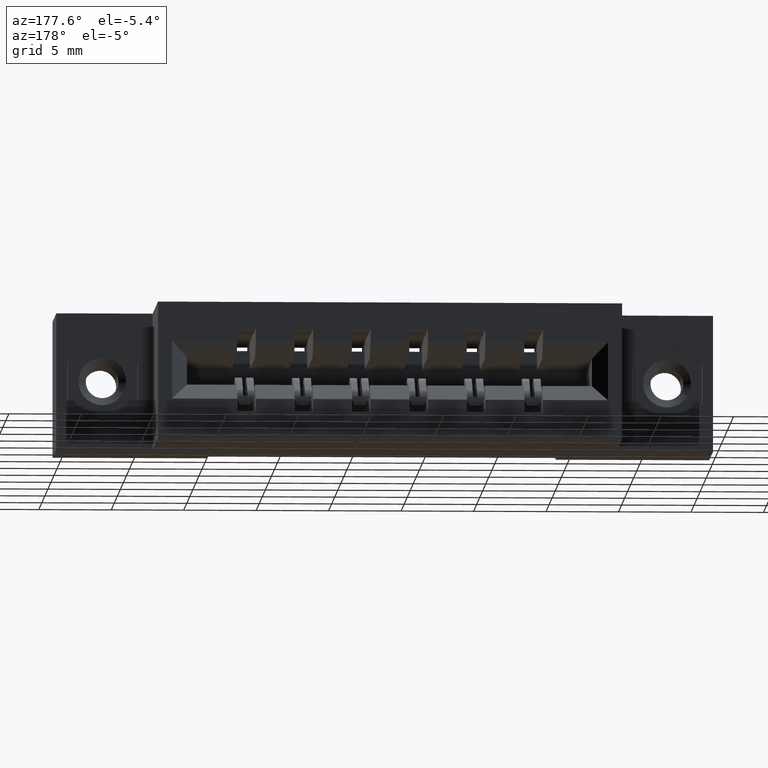
[diagram: clean part render]
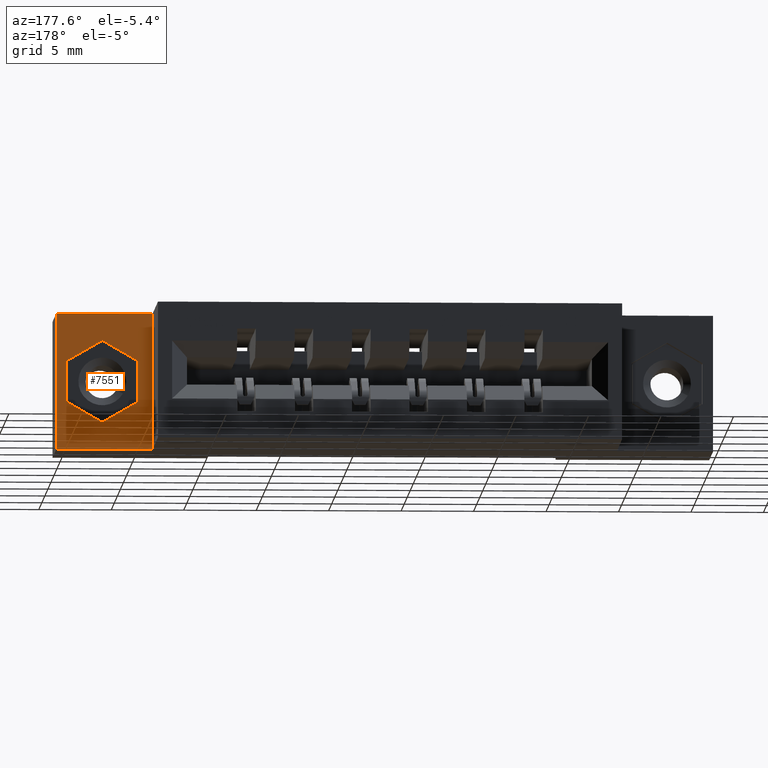
[diagram: same view with one face highlighted and labeled with its STEP entity id]
A machine part, auxiliary view. The second image highlights one B-rep face of the part: STEP entity #7551.
In plain terms, the highlighted planar face has unit normal (0, 1, 0).
Its self-contained STEP definition (entity closure, byte-faithful):
#256 = DIRECTION ( 'NONE',  ( -1.000000000000000000, 0.0000000000000000000, -5.223418725935506000E-016 ) ) ;
#823 = EDGE_LOOP ( 'NONE', ( #6696, #1185, #5176, #6648 ) ) ;
#885 = EDGE_CURVE ( 'NONE', #4120, #1144, #8137, .T. ) ;
#946 = CARTESIAN_POINT ( 'NONE',  ( 1.562500000000001100, 0.2500000000000000000, -0.1292856990231999700 ) ) ;
#1089 = ORIENTED_EDGE ( 'NONE', *, *, #1880, .F. ) ;
#1133 = VERTEX_POINT ( 'NONE', #6321 ) ;
#1144 = VERTEX_POINT ( 'NONE', #3587 ) ;
#1174 = ORIENTED_EDGE ( 'NONE', *, *, #885, .F. ) ;
#1185 = ORIENTED_EDGE ( 'NONE', *, *, #8795, .T. ) ;
#1453 = VERTEX_POINT ( 'NONE', #9634 ) ;
#1656 = ORIENTED_EDGE ( 'NONE', *, *, #6246, .F. ) ;
#1880 = EDGE_CURVE ( 'NONE', #6206, #6700, #7198, .T. ) ;
#2017 = VECTOR ( 'NONE', #5835, 39.37007874015748100 ) ;
#2099 = CARTESIAN_POINT ( 'NONE',  ( 1.755500000000001600, 0.2500000000000000000, -0.2407143009767978300 ) ) ;
#2196 = AXIS2_PLACEMENT_3D ( 'NONE', #8405, #7726, #3244 ) ;
#2233 = VECTOR ( 'NONE', #7184, 39.37007874015748100 ) ;
#2426 = CARTESIAN_POINT ( 'NONE',  ( 1.755500000000001600, 0.2500000000000000000, -0.2407143009767978300 ) ) ;
#2439 = VECTOR ( 'NONE', #4291, 39.37007874015749600 ) ;
#2693 = ORIENTED_EDGE ( 'NONE', *, *, #5034, .F. ) ;
#2768 = EDGE_CURVE ( 'NONE', #6700, #4120, #3455, .T. ) ;
#2897 = DIRECTION ( 'NONE',  ( -0.0000000000000000000, -0.0000000000000000000, -1.000000000000000000 ) ) ;
#2914 = CARTESIAN_POINT ( 'NONE',  ( 1.784000000000000500, 0.2500000000000000000, -0.3700000000000000000 ) ) ;
#3090 = VERTEX_POINT ( 'NONE', #4506 ) ;
#3244 = DIRECTION ( 'NONE',  ( 0.0000000000000000000, 0.0000000000000000000, 1.000000000000000000 ) ) ;
#3263 = CARTESIAN_POINT ( 'NONE',  ( 1.562500000000001100, 0.2500000000000000000, -0.2407143009767977500 ) ) ;
#3381 = EDGE_CURVE ( 'NONE', #3090, #4455, #6254, .T. ) ;
#3455 = LINE ( 'NONE', #7068, #3696 ) ;
#3587 = CARTESIAN_POINT ( 'NONE',  ( 1.659000000000001100, 0.2500000000000000000, -0.07357139804640112900 ) ) ;
#3602 = LINE ( 'NONE', #5509, #7088 ) ;
#3646 = EDGE_CURVE ( 'NONE', #4455, #1133, #5795, .T. ) ;
#3696 = VECTOR ( 'NONE', #7473, 39.37007874015748100 ) ;
#3808 = VECTOR ( 'NONE', #2897, 39.37007874015748100 ) ;
#4051 = DIRECTION ( 'NONE',  ( 0.0000000000000000000, 0.0000000000000000000, 1.000000000000000000 ) ) ;
#4120 = VERTEX_POINT ( 'NONE', #946 ) ;
#4208 = CARTESIAN_POINT ( 'NONE',  ( 1.659000000000001600, 0.2500000000000000000, -0.2964286019535967200 ) ) ;
#4291 = DIRECTION ( 'NONE',  ( 0.8660254037844384900, -0.0000000000000000000, 0.5000000000000002200 ) ) ;
#4455 = VERTEX_POINT ( 'NONE', #5823 ) ;
#4456 = VECTOR ( 'NONE', #8367, 39.37007874015748100 ) ;
#4475 = VECTOR ( 'NONE', #7945, 39.37007874015749600 ) ;
#4506 = CARTESIAN_POINT ( 'NONE',  ( 1.522500000000001100, 0.2500000000000000000, -1.704402182713329600E-016 ) ) ;
#4696 = LINE ( 'NONE', #2426, #4456 ) ;
#4779 = FACE_BOUND ( 'NONE', #5522, .T. ) ;
#5034 = EDGE_CURVE ( 'NONE', #7228, #6206, #6453, .T. ) ;
#5176 = ORIENTED_EDGE ( 'NONE', *, *, #3381, .T. ) ;
#5242 = LINE ( 'NONE', #9210, #7191 ) ;
#5246 = VECTOR ( 'NONE', #7022, 39.37007874015748900 ) ;
#5325 = ORIENTED_EDGE ( 'NONE', *, *, #2768, .F. ) ;
#5509 = CARTESIAN_POINT ( 'NONE',  ( 1.784000000000000500, 0.2500000000000000000, -0.3700000000000000000 ) ) ;
#5522 = EDGE_LOOP ( 'NONE', ( #5325, #1089, #2693, #8482, #1656, #1174 ) ) ;
#5526 = LINE ( 'NONE', #9394, #2233 ) ;
#5795 = LINE ( 'NONE', #2914, #3808 ) ;
#5823 = CARTESIAN_POINT ( 'NONE',  ( 1.784000000000000500, 0.2500000000000000000, 0.0000000000000000000 ) ) ;
#5835 = DIRECTION ( 'NONE',  ( 1.000000000000000000, -0.0000000000000000000, 6.517790373664756200E-016 ) ) ;
#5938 = CARTESIAN_POINT ( 'NONE',  ( 1.784000000000000500, 0.2500000000000000000, 0.0000000000000000000 ) ) ;
#6206 = VERTEX_POINT ( 'NONE', #6413 ) ;
#6246 = EDGE_CURVE ( 'NONE', #1144, #1453, #5526, .T. ) ;
#6254 = LINE ( 'NONE', #5938, #2017 ) ;
#6321 = CARTESIAN_POINT ( 'NONE',  ( 1.784000000000000500, 0.2500000000000001100, -0.3700000000000000000 ) ) ;
#6413 = CARTESIAN_POINT ( 'NONE',  ( 1.659000000000001600, 0.2500000000000000000, -0.2964286019535967200 ) ) ;
#6453 = LINE ( 'NONE', #4208, #4475 ) ;
#6526 = FACE_OUTER_BOUND ( 'NONE', #823, .T. ) ;
#6606 = EDGE_CURVE ( 'NONE', #1453, #7228, #4696, .T. ) ;
#6648 = ORIENTED_EDGE ( 'NONE', *, *, #3646, .T. ) ;
#6696 = ORIENTED_EDGE ( 'NONE', *, *, #8174, .T. ) ;
#6700 = VERTEX_POINT ( 'NONE', #3263 ) ;
#6964 = PLANE ( 'NONE',  #2196 ) ;
#7022 = DIRECTION ( 'NONE',  ( -0.8660254037844393700, -0.0000000000000000000, 0.4999999999999985600 ) ) ;
#7068 = CARTESIAN_POINT ( 'NONE',  ( 1.562500000000001100, 0.2500000000000000000, -0.1292856990232000000 ) ) ;
#7088 = VECTOR ( 'NONE', #256, 39.37007874015748100 ) ;
#7118 = CARTESIAN_POINT ( 'NONE',  ( 1.562500000000001100, 0.2500000000000000000, -0.2407143009767977500 ) ) ;
#7184 = DIRECTION ( 'NONE',  ( 0.8660254037844397100, -0.0000000000000000000, -0.4999999999999981700 ) ) ;
#7191 = VECTOR ( 'NONE', #4051, 39.37007874015748100 ) ;
#7198 = LINE ( 'NONE', #7118, #5246 ) ;
#7228 = VERTEX_POINT ( 'NONE', #2099 ) ;
#7321 = CARTESIAN_POINT ( 'NONE',  ( 1.522500000000001100, 0.2500000000000000000, -0.3700000000000001600 ) ) ;
#7473 = DIRECTION ( 'NONE',  ( -0.0000000000000000000, -0.0000000000000000000, 1.000000000000000000 ) ) ;
#7551 = ADVANCED_FACE ( 'NONE', ( #4779, #6526 ), #6964, .T. ) ;
#7726 = DIRECTION ( 'NONE',  ( 0.0000000000000000000, 1.000000000000000000, -0.0000000000000000000 ) ) ;
#7945 = DIRECTION ( 'NONE',  ( -0.8660254037844384900, -0.0000000000000000000, -0.5000000000000002200 ) ) ;
#8137 = LINE ( 'NONE', #8608, #2439 ) ;
#8174 = EDGE_CURVE ( 'NONE', #1133, #9550, #3602, .T. ) ;
#8367 = DIRECTION ( 'NONE',  ( -0.0000000000000000000, -0.0000000000000000000, -1.000000000000000000 ) ) ;
#8405 = CARTESIAN_POINT ( 'NONE',  ( 1.522500000000001100, 0.2500000000000000000, -0.3700000000000001600 ) ) ;
#8482 = ORIENTED_EDGE ( 'NONE', *, *, #6606, .F. ) ;
#8608 = CARTESIAN_POINT ( 'NONE',  ( 1.659000000000001100, 0.2500000000000000000, -0.07357139804640112900 ) ) ;
#8795 = EDGE_CURVE ( 'NONE', #9550, #3090, #5242, .T. ) ;
#9210 = CARTESIAN_POINT ( 'NONE',  ( 1.522500000000001100, 0.2500000000000000000, -0.3700000000000001600 ) ) ;
#9394 = CARTESIAN_POINT ( 'NONE',  ( 1.755500000000001600, 0.2500000000000000000, -0.1292856990232000000 ) ) ;
#9550 = VERTEX_POINT ( 'NONE', #7321 ) ;
#9634 = CARTESIAN_POINT ( 'NONE',  ( 1.755500000000001600, 0.2500000000000000000, -0.1292856990232000000 ) ) ;